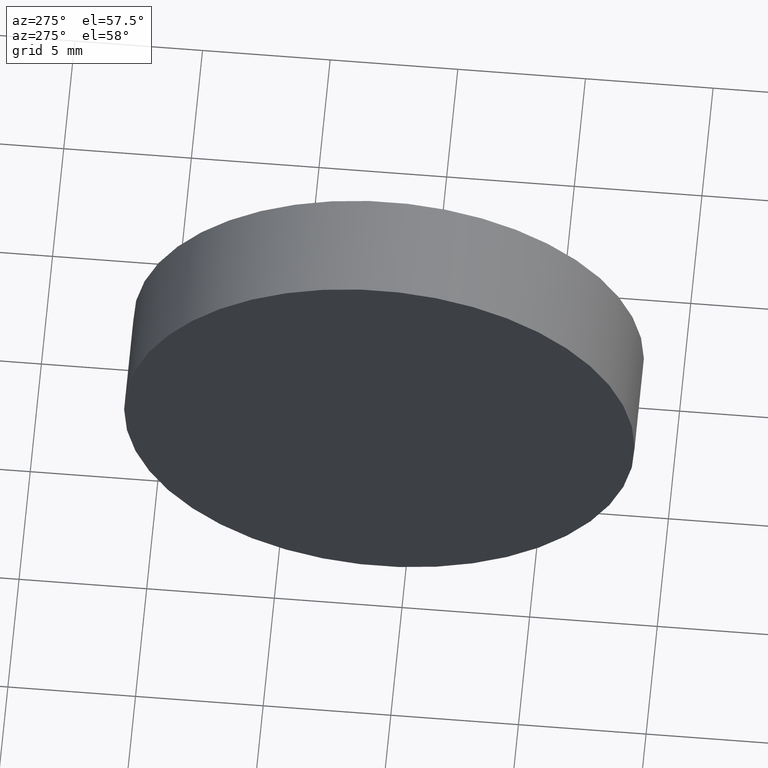
[diagram: clean part render]
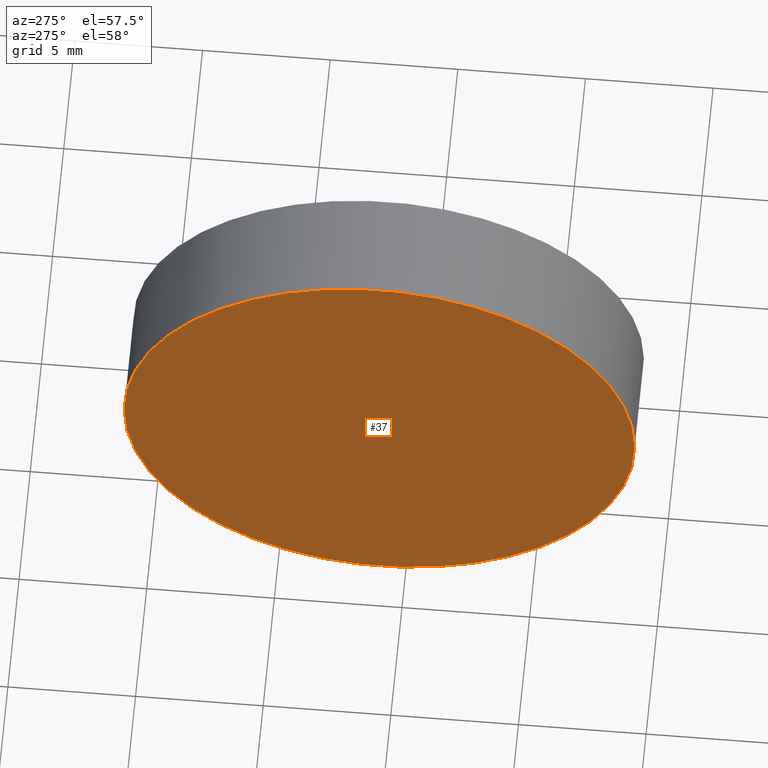
[diagram: same view with one face highlighted and labeled with its STEP entity id]
A machine part, auxiliary view. The second image highlights one B-rep face of the part: STEP entity #37.
In plain terms, the highlighted planar face has unit normal (1, -0, 0).
Its self-contained STEP definition (entity closure, byte-faithful):
#6 = PLANE ( 'NONE',  #52 ) ;
#10 = CARTESIAN_POINT ( 'NONE',  ( 46.58547009932218000, 36.02329994089732400, 1.224646799147353500E-015 ) ) ;
#15 = AXIS2_PLACEMENT_3D ( 'NONE', #49, #133, #160 ) ;
#21 = CARTESIAN_POINT ( 'NONE',  ( 46.58547009932217300, 26.02329994089732100, 0.0000000000000000000 ) ) ;
#22 = DIRECTION ( 'NONE',  ( 8.116490868597533400E-016, 1.000000000000000000, 0.0000000000000000000 ) ) ;
#25 = DIRECTION ( 'NONE',  ( -6.938893903907229400E-016, -1.000000000000000000, 0.0000000000000000000 ) ) ;
#35 = EDGE_CURVE ( 'NONE', #121, #60, #70, .T. ) ;
#37 = ADVANCED_FACE ( 'NONE', ( #108 ), #6, .F. ) ;
#49 = CARTESIAN_POINT ( 'NONE',  ( 46.58547009932217300, 26.02329994089732800, 0.0000000000000000000 ) ) ;
#51 = CARTESIAN_POINT ( 'NONE',  ( 46.58547009932217300, 26.02329994089732800, 0.0000000000000000000 ) ) ;
#52 = AXIS2_PLACEMENT_3D ( 'NONE', #21, #151, #22 ) ;
#60 = VERTEX_POINT ( 'NONE', #123 ) ;
#70 = CIRCLE ( 'NONE', #15, 9.999999999999998200 ) ;
#80 = EDGE_CURVE ( 'NONE', #60, #121, #117, .T. ) ;
#97 = AXIS2_PLACEMENT_3D ( 'NONE', #51, #110, #25 ) ;
#102 = ORIENTED_EDGE ( 'NONE', *, *, #35, .T. ) ;
#108 = FACE_OUTER_BOUND ( 'NONE', #114, .T. ) ;
#109 = ORIENTED_EDGE ( 'NONE', *, *, #80, .T. ) ;
#110 = DIRECTION ( 'NONE',  ( -1.000000000000000000, 8.116490868597533400E-016, -0.0000000000000000000 ) ) ;
#114 = EDGE_LOOP ( 'NONE', ( #109, #102 ) ) ;
#117 = CIRCLE ( 'NONE', #97, 9.999999999999998200 ) ;
#121 = VERTEX_POINT ( 'NONE', #10 ) ;
#123 = CARTESIAN_POINT ( 'NONE',  ( 46.58547009932216600, 16.02329994089733100, 0.0000000000000000000 ) ) ;
#133 = DIRECTION ( 'NONE',  ( -1.000000000000000000, 8.116490868597533400E-016, -0.0000000000000000000 ) ) ;
#151 = DIRECTION ( 'NONE',  ( 1.000000000000000000, -8.116490868597533400E-016, 0.0000000000000000000 ) ) ;
#160 = DIRECTION ( 'NONE',  ( -6.938893903907229400E-016, -1.000000000000000000, 0.0000000000000000000 ) ) ;